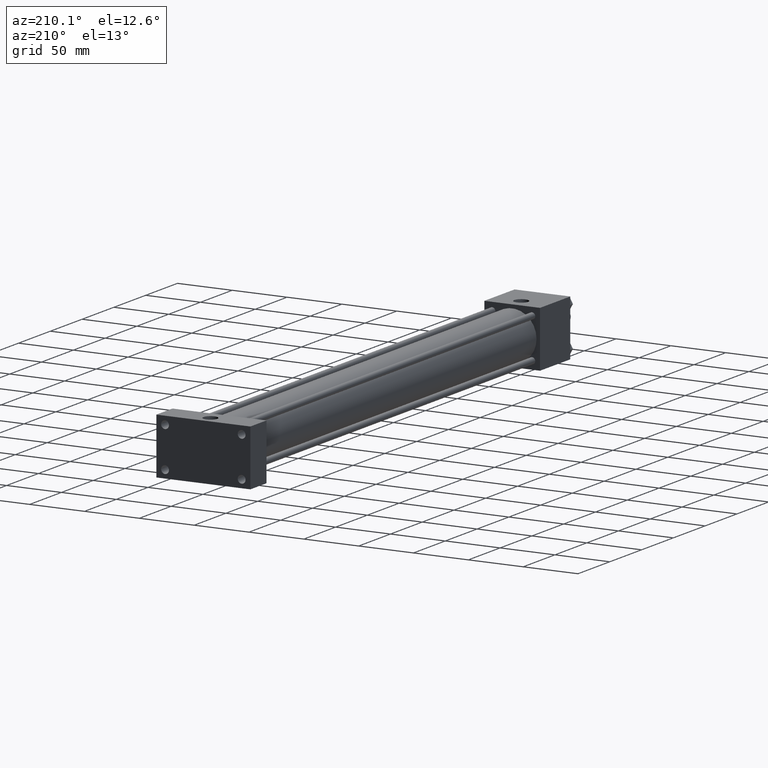
[diagram: clean part render]
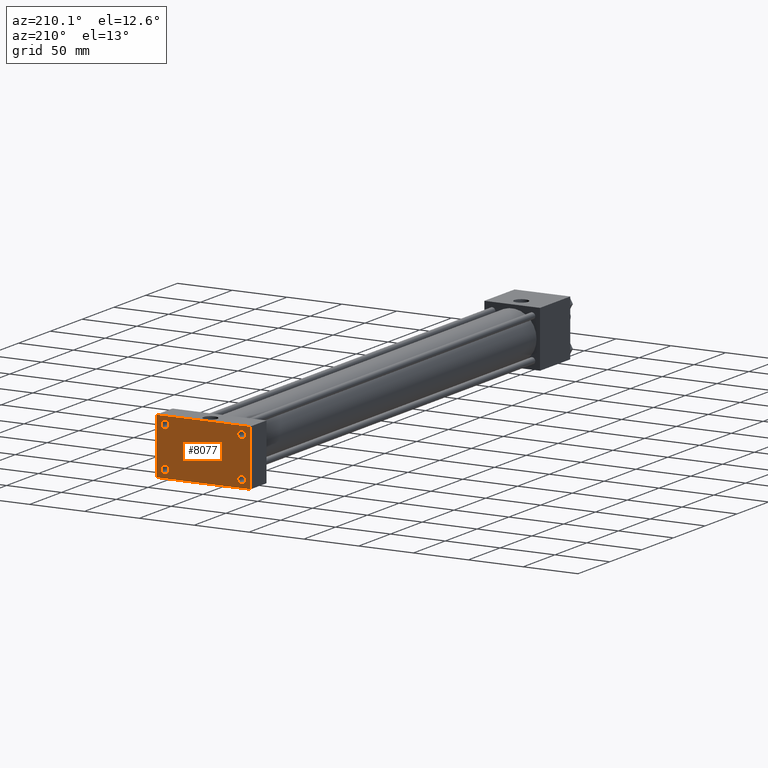
[diagram: same view with one face highlighted and labeled with its STEP entity id]
A machine part, auxiliary view. The second image highlights one B-rep face of the part: STEP entity #8077.
In plain terms, the highlighted planar face has unit normal (0, 1, 0).
Its self-contained STEP definition (entity closure, byte-faithful):
#3640=EDGE_CURVE('',#3645,#3646,#3641,.T.);
#3641=LINE('',#3642,#3643);
#3642=CARTESIAN_POINT('',(-4.286250000E+001,5.492750000E+002,2.540000000E+001));
#3643=VECTOR('',#3644,1.0E+000);
#3644=DIRECTION('',(0.0E+000,0.0E+000,-1.0E+000));
#3645=VERTEX_POINT('',#3647);
#3646=VERTEX_POINT('',#3648);
#3647=CARTESIAN_POINT('',(-4.286250000E+001,5.492750000E+002,2.540000000E+001));
#3648=CARTESIAN_POINT('',(-4.286250000E+001,5.492750000E+002,-2.540000000E+001));
#3686=VERTEX_POINT('',#3687);
#3687=CARTESIAN_POINT('',(4.286250000E+001,5.492750000E+002,2.540000000E+001));
#3693=VERTEX_POINT('',#3694);
#3694=CARTESIAN_POINT('',(4.286250000E+001,5.492750000E+002,-2.540000000E+001));
#3695=EDGE_CURVE('',#3693,#3686,#3696,.T.);
#3696=LINE('',#3697,#3698);
#3697=CARTESIAN_POINT('',(4.286250000E+001,5.492750000E+002,-2.540000000E+001));
#3698=VECTOR('',#3699,1.0E+000);
#3699=DIRECTION('',(0.0E+000,0.0E+000,1.0E+000));
#3722=EDGE_CURVE('',#3646,#3693,#3723,.T.);
#3723=LINE('',#3724,#3725);
#3724=CARTESIAN_POINT('',(-4.286250000E+001,5.492750000E+002,-2.540000000E+001));
#3725=VECTOR('',#3726,1.0E+000);
#3726=DIRECTION('',(1.0E+000,0.0E+000,0.0E+000));
#3749=EDGE_CURVE('',#3686,#3645,#3750,.T.);
#3750=LINE('',#3751,#3752);
#3751=CARTESIAN_POINT('',(4.286250000E+001,5.492750000E+002,2.540000000E+001));
#3752=VECTOR('',#3753,1.0E+000);
#3753=DIRECTION('',(-1.0E+000,0.0E+000,0.0E+000));
#3768=FACE_OUTER_BOUND('',#3773,.T.);
#3769=FACE_BOUND('',#3774,.T.);
#3770=FACE_BOUND('',#3775,.T.);
#3771=FACE_BOUND('',#3776,.T.);
#3772=FACE_BOUND('',#3777,.T.);
#3773=EDGE_LOOP('',(#3778));
#3774=EDGE_LOOP('',(#3787));
#3775=EDGE_LOOP('',(#3796));
#3776=EDGE_LOOP('',(#3805));
#3777=EDGE_LOOP('',(#3814,#3815,#3816,#3817));
#3778=ORIENTED_EDGE('',*,*,#3779,.F.);
#3779=EDGE_CURVE('',#3785,#3785,#3780,.T.);
#3780=CIRCLE('',#3781,3.568700000E+000);
#3781=AXIS2_PLACEMENT_3D('',#3782,#3783,#3784);
#3782=CARTESIAN_POINT('',(-3.492500000E+001,5.492750000E+002,1.816100000E+001));
#3783=DIRECTION('',(0.0E+000,1.0E+000,0.0E+000));
#3784=DIRECTION('',(0.0E+000,0.0E+000,1.0E+000));
#3785=VERTEX_POINT('',#3786);
#3786=CARTESIAN_POINT('',(-3.492500000E+001,5.492750000E+002,2.172970000E+001));
#3787=ORIENTED_EDGE('',*,*,#3788,.F.);
#3788=EDGE_CURVE('',#3794,#3794,#3789,.T.);
#3789=CIRCLE('',#3790,3.568700000E+000);
#3790=AXIS2_PLACEMENT_3D('',#3791,#3792,#3793);
#3791=CARTESIAN_POINT('',(3.492500000E+001,5.492750000E+002,1.816100000E+001));
#3792=DIRECTION('',(0.0E+000,1.0E+000,0.0E+000));
#3793=DIRECTION('',(0.0E+000,0.0E+000,1.0E+000));
#3794=VERTEX_POINT('',#3795);
#3795=CARTESIAN_POINT('',(3.492500000E+001,5.492750000E+002,2.172970000E+001));
#3796=ORIENTED_EDGE('',*,*,#3797,.F.);
#3797=EDGE_CURVE('',#3803,#3803,#3798,.T.);
#3798=CIRCLE('',#3799,3.568700000E+000);
#3799=AXIS2_PLACEMENT_3D('',#3800,#3801,#3802);
#3800=CARTESIAN_POINT('',(3.492500000E+001,5.492750000E+002,-1.816100000E+001));
#3801=DIRECTION('',(0.0E+000,1.0E+000,0.0E+000));
#3802=DIRECTION('',(0.0E+000,0.0E+000,1.0E+000));
#3803=VERTEX_POINT('',#3804);
#3804=CARTESIAN_POINT('',(3.492500000E+001,5.492750000E+002,-1.459230000E+001));
#3805=ORIENTED_EDGE('',*,*,#3806,.F.);
#3806=EDGE_CURVE('',#3812,#3812,#3807,.T.);
#3807=CIRCLE('',#3808,3.568700000E+000);
#3808=AXIS2_PLACEMENT_3D('',#3809,#3810,#3811);
#3809=CARTESIAN_POINT('',(-3.492500000E+001,5.492750000E+002,-1.816100000E+001));
#3810=DIRECTION('',(0.0E+000,1.0E+000,0.0E+000));
#3811=DIRECTION('',(0.0E+000,0.0E+000,1.0E+000));
#3812=VERTEX_POINT('',#3813);
#3813=CARTESIAN_POINT('',(-3.492500000E+001,5.492750000E+002,-1.459230000E+001));
#3814=ORIENTED_EDGE('',*,*,#3722,.F.);
#3815=ORIENTED_EDGE('',*,*,#3640,.F.);
#3816=ORIENTED_EDGE('',*,*,#3749,.F.);
#3817=ORIENTED_EDGE('',*,*,#3695,.F.);
#3818=PLANE('',#3819);
#3819=AXIS2_PLACEMENT_3D('',#3820,#3821,#3822);
#3820=CARTESIAN_POINT('',(-4.286250000E+001,5.492750000E+002,-2.540000000E+001));
#3821=DIRECTION('',(0.0E+000,1.0E+000,0.0E+000));
#3822=DIRECTION('',(0.0E+000,0.0E+000,1.0E+000));
#8077=ADVANCED_FACE('',(#3768,#3769,#3770,#3771,#3772),#3818,.T.);